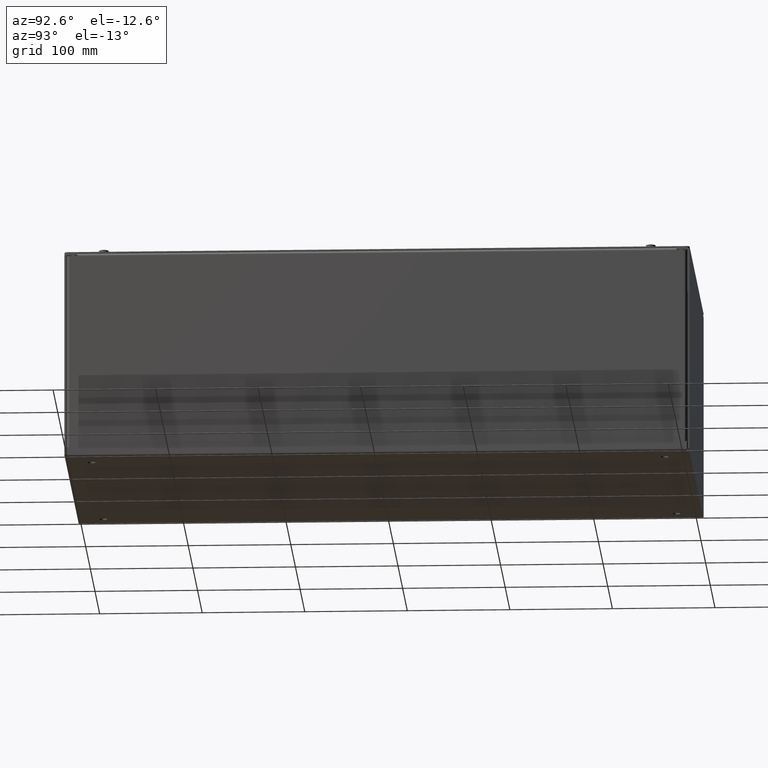
[diagram: clean part render]
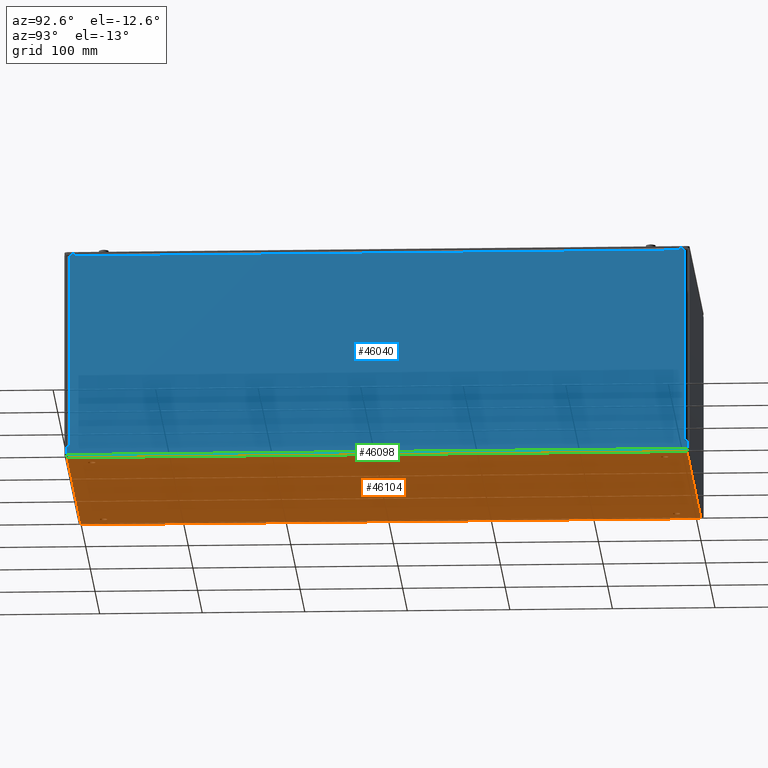
[diagram: same view with three faces highlighted in distinct colors, each labeled with its STEP entity id]
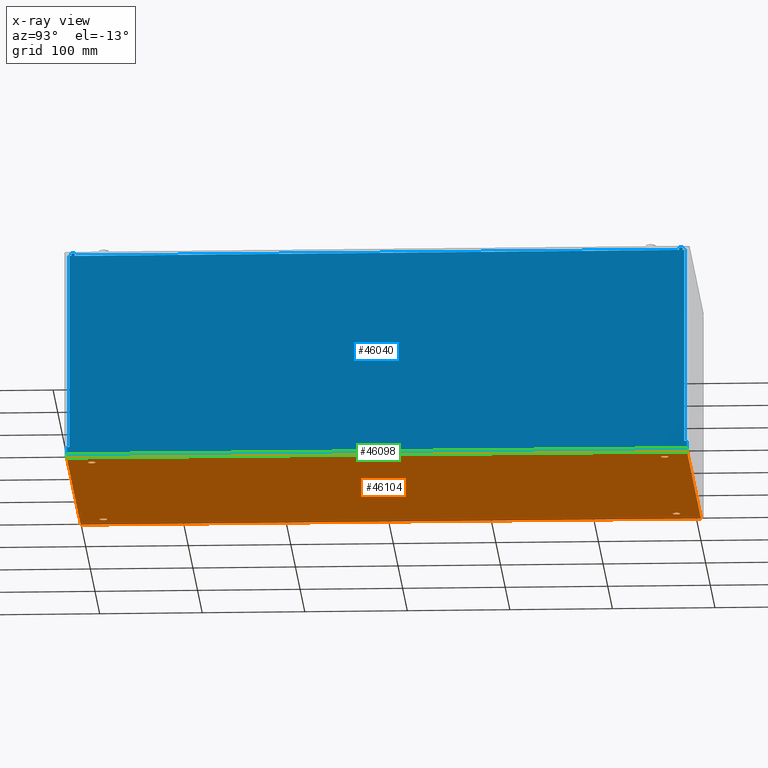
[diagram: x-ray of the same camera — body ghosted, the three highlighted faces saturated]
A machine part, auxiliary view with three faces highlighted in distinct colors.
The next image is the same camera in x-ray (body ghosted, the three faces saturated) — at least one of them is partly hidden behind the body in this view.
Their STEP definitions:

[orange] entity #46104 — the highlighted planar face has unit normal (0, 0, 1).
#4098=FACE_BOUND('',#8744,.T.);
#4099=FACE_BOUND('',#8745,.T.);
#4100=FACE_BOUND('',#8746,.T.);
#4101=FACE_BOUND('',#8747,.T.);
#4500=PLANE('',#48905);
#6221=FACE_OUTER_BOUND('',#8743,.T.);
#8743=EDGE_LOOP('',(#33542,#33543,#33544,#33545));
#8744=EDGE_LOOP('',(#33546));
#8745=EDGE_LOOP('',(#33547));
#8746=EDGE_LOOP('',(#33548));
#8747=EDGE_LOOP('',(#33549));
#11697=LINE('',#61702,#16622);
#11701=LINE('',#61709,#16626);
#11705=LINE('',#61715,#16630);
#11708=LINE('',#61722,#16633);
#16622=VECTOR('',#51867,0.393700787401575);
#16626=VECTOR('',#51877,0.393700787401575);
#16630=VECTOR('',#51885,0.393700787401575);
#16633=VECTOR('',#51896,0.393700787401575);
#21118=CIRCLE('',#48594,0.145);
#21120=CIRCLE('',#48597,0.145);
#21122=CIRCLE('',#48600,0.145);
#21124=CIRCLE('',#48603,0.145);
#21448=VERTEX_POINT('',#60228);
#21450=VERTEX_POINT('',#60234);
#21452=VERTEX_POINT('',#60240);
#21454=VERTEX_POINT('',#60246);
#21742=VERTEX_POINT('',#61117);
#21755=VERTEX_POINT('',#61181);
#21773=VERTEX_POINT('',#61274);
#21775=VERTEX_POINT('',#61280);
#25822=EDGE_CURVE('',#21448,#21448,#21118,.T.);
#25825=EDGE_CURVE('',#21450,#21450,#21120,.T.);
#25828=EDGE_CURVE('',#21452,#21452,#21122,.T.);
#25831=EDGE_CURVE('',#21454,#21454,#21124,.T.);
#26358=EDGE_CURVE('',#21773,#21755,#11697,.T.);
#26362=EDGE_CURVE('',#21742,#21773,#11701,.T.);
#26366=EDGE_CURVE('',#21775,#21742,#11705,.T.);
#26369=EDGE_CURVE('',#21755,#21775,#11708,.T.);
#33542=ORIENTED_EDGE('',*,*,#26358,.T.);
#33543=ORIENTED_EDGE('',*,*,#26369,.T.);
#33544=ORIENTED_EDGE('',*,*,#26366,.T.);
#33545=ORIENTED_EDGE('',*,*,#26362,.T.);
#33546=ORIENTED_EDGE('',*,*,#25822,.T.);
#33547=ORIENTED_EDGE('',*,*,#25825,.T.);
#33548=ORIENTED_EDGE('',*,*,#25828,.T.);
#33549=ORIENTED_EDGE('',*,*,#25831,.T.);
#46104=ADVANCED_FACE('',(#6221,#4098,#4099,#4100,#4101),#4500,.F.);
#48594=AXIS2_PLACEMENT_3D('',#60230,#50836,#50837);
#48597=AXIS2_PLACEMENT_3D('',#60236,#50843,#50844);
#48600=AXIS2_PLACEMENT_3D('',#60242,#50850,#50851);
#48603=AXIS2_PLACEMENT_3D('',#60248,#50857,#50858);
#48905=AXIS2_PLACEMENT_3D('',#61724,#51899,#51900);
#50836=DIRECTION('center_axis',(0.,0.,1.));
#50837=DIRECTION('ref_axis',(1.,2.37028668489426E-16,0.));
#50843=DIRECTION('center_axis',(0.,0.,1.));
#50844=DIRECTION('ref_axis',(1.,2.37028668489426E-16,0.));
#50850=DIRECTION('center_axis',(0.,0.,1.));
#50851=DIRECTION('ref_axis',(1.,2.37028668489426E-16,0.));
#50857=DIRECTION('center_axis',(0.,0.,1.));
#50858=DIRECTION('ref_axis',(1.,2.37028668489426E-16,0.));
#51867=DIRECTION('',(0.,1.,0.));
#51877=DIRECTION('',(-1.,0.,0.));
#51885=DIRECTION('',(0.,-1.,0.));
#51896=DIRECTION('',(1.,0.,0.));
#51899=DIRECTION('center_axis',(0.,0.,1.));
#51900=DIRECTION('ref_axis',(1.,0.,0.));
#60228=CARTESIAN_POINT('',(4.855,-11.,0.));
#60230=CARTESIAN_POINT('Origin',(5.,-11.,0.));
#60234=CARTESIAN_POINT('',(4.855,11.,0.));
#60236=CARTESIAN_POINT('Origin',(5.,11.,0.));
#60240=CARTESIAN_POINT('',(-5.145,11.,0.));
#60242=CARTESIAN_POINT('Origin',(-5.,11.,0.));
#60246=CARTESIAN_POINT('',(-5.145,-11.,0.));
#60248=CARTESIAN_POINT('Origin',(-5.,-11.,0.));
#61117=CARTESIAN_POINT('',(5.901,-11.901,0.));
#61181=CARTESIAN_POINT('',(-5.901,11.901,0.));
#61274=CARTESIAN_POINT('',(-5.901,-11.901,0.));
#61280=CARTESIAN_POINT('',(5.901,11.901,0.));
#61702=CARTESIAN_POINT('',(-5.901,5.9505,0.));
#61709=CARTESIAN_POINT('',(-3.,-11.901,0.));
#61715=CARTESIAN_POINT('',(5.901,-5.9505,0.));
#61722=CARTESIAN_POINT('',(3.,11.901,0.));
#61724=CARTESIAN_POINT('Origin',(0.,0.,0.));

[blue] entity #46040 — the highlighted planar face has unit normal (1, -0, 0).
#4458=PLANE('',#48817);
#6157=FACE_OUTER_BOUND('',#8675,.T.);
#8675=EDGE_LOOP('',(#33214,#33215,#33216,#33217,#33218,#33219,#33220,#33221,
#33222,#33223,#33224,#33225,#33226,#33227,#33228,#33229,#33230,#33231,#33232,
#33233,#33234,#33235));
#11274=LINE('',#60257,#16199);
#11276=LINE('',#60263,#16201);
#11280=LINE('',#60269,#16205);
#11282=LINE('',#60275,#16207);
#11288=LINE('',#60287,#16213);
#11289=LINE('',#60289,#16214);
#11311=LINE('',#60335,#16236);
#11316=LINE('',#60344,#16241);
#11319=LINE('',#60350,#16244);
#11320=LINE('',#60353,#16245);
#11404=LINE('',#60540,#16329);
#11622=LINE('',#61087,#16547);
#11624=LINE('',#61091,#16549);
#11626=LINE('',#61096,#16551);
#11628=LINE('',#61099,#16553);
#11629=LINE('',#61102,#16554);
#11630=LINE('',#61104,#16555);
#11631=LINE('',#61106,#16556);
#11632=LINE('',#61108,#16557);
#11633=LINE('',#61110,#16558);
#11634=LINE('',#61112,#16559);
#11635=LINE('',#61113,#16560);
#16199=VECTOR('',#50864,0.393700787401575);
#16201=VECTOR('',#50868,0.393700787401575);
#16205=VECTOR('',#50874,0.393700787401575);
#16207=VECTOR('',#50878,0.393700787401575);
#16213=VECTOR('',#50886,0.393700787401575);
#16214=VECTOR('',#50889,0.393700787401575);
#16236=VECTOR('',#50925,0.393700787401575);
#16241=VECTOR('',#50932,0.393700787401575);
#16244=VECTOR('',#50937,0.393700787401575);
#16245=VECTOR('',#50940,0.393700787401575);
#16329=VECTOR('',#51100,0.393700787401575);
#16547=VECTOR('',#51630,0.393700787401575);
#16549=VECTOR('',#51634,0.393700787401575);
#16551=VECTOR('',#51638,0.393700787401575);
#16553=VECTOR('',#51642,0.393700787401575);
#16554=VECTOR('',#51645,0.393700787401575);
#16555=VECTOR('',#51646,0.393700787401575);
#16556=VECTOR('',#51647,0.393700787401575);
#16557=VECTOR('',#51648,0.393700787401575);
#16558=VECTOR('',#51649,0.393700787401575);
#16559=VECTOR('',#51650,0.393700787401575);
#16560=VECTOR('',#51651,0.393700787401575);
#21456=VERTEX_POINT('',#60251);
#21458=VERTEX_POINT('',#60255);
#21459=VERTEX_POINT('',#60259);
#21461=VERTEX_POINT('',#60262);
#21463=VERTEX_POINT('',#60271);
#21465=VERTEX_POINT('',#60274);
#21468=VERTEX_POINT('',#60281);
#21470=VERTEX_POINT('',#60285);
#21487=VERTEX_POINT('',#60334);
#21490=VERTEX_POINT('',#60342);
#21492=VERTEX_POINT('',#60348);
#21493=VERTEX_POINT('',#60352);
#21731=VERTEX_POINT('',#61083);
#21732=VERTEX_POINT('',#61089);
#21733=VERTEX_POINT('',#61093);
#21734=VERTEX_POINT('',#61095);
#21735=VERTEX_POINT('',#61101);
#21736=VERTEX_POINT('',#61103);
#21737=VERTEX_POINT('',#61105);
#21738=VERTEX_POINT('',#61107);
#21739=VERTEX_POINT('',#61109);
#21740=VERTEX_POINT('',#61111);
#25835=EDGE_CURVE('',#21456,#21458,#11274,.T.);
#25837=EDGE_CURVE('',#21459,#21461,#11276,.T.);
#25841=EDGE_CURVE('',#21461,#21458,#11280,.T.);
#25843=EDGE_CURVE('',#21463,#21465,#11282,.T.);
#25849=EDGE_CURVE('',#21468,#21470,#11288,.T.);
#25850=EDGE_CURVE('',#21465,#21470,#11289,.T.);
#25872=EDGE_CURVE('',#21487,#21456,#11311,.T.);
#25877=EDGE_CURVE('',#21459,#21490,#11316,.T.);
#25880=EDGE_CURVE('',#21463,#21492,#11319,.T.);
#25881=EDGE_CURVE('',#21493,#21468,#11320,.T.);
#25974=EDGE_CURVE('',#21492,#21487,#11404,.T.);
#26247=EDGE_CURVE('',#21490,#21731,#11622,.T.);
#26249=EDGE_CURVE('',#21731,#21732,#11624,.T.);
#26251=EDGE_CURVE('',#21734,#21733,#11626,.T.);
#26253=EDGE_CURVE('',#21732,#21734,#11628,.T.);
#26254=EDGE_CURVE('',#21733,#21735,#11629,.T.);
#26255=EDGE_CURVE('',#21735,#21736,#11630,.T.);
#26256=EDGE_CURVE('',#21736,#21737,#11631,.T.);
#26257=EDGE_CURVE('',#21737,#21738,#11632,.T.);
#26258=EDGE_CURVE('',#21738,#21739,#11633,.T.);
#26259=EDGE_CURVE('',#21739,#21740,#11634,.T.);
#26260=EDGE_CURVE('',#21740,#21493,#11635,.T.);
#33214=ORIENTED_EDGE('',*,*,#25881,.T.);
#33215=ORIENTED_EDGE('',*,*,#25849,.T.);
#33216=ORIENTED_EDGE('',*,*,#25850,.F.);
#33217=ORIENTED_EDGE('',*,*,#25843,.F.);
#33218=ORIENTED_EDGE('',*,*,#25880,.T.);
#33219=ORIENTED_EDGE('',*,*,#25974,.T.);
#33220=ORIENTED_EDGE('',*,*,#25872,.T.);
#33221=ORIENTED_EDGE('',*,*,#25835,.T.);
#33222=ORIENTED_EDGE('',*,*,#25841,.F.);
#33223=ORIENTED_EDGE('',*,*,#25837,.F.);
#33224=ORIENTED_EDGE('',*,*,#25877,.T.);
#33225=ORIENTED_EDGE('',*,*,#26247,.T.);
#33226=ORIENTED_EDGE('',*,*,#26249,.T.);
#33227=ORIENTED_EDGE('',*,*,#26253,.T.);
#33228=ORIENTED_EDGE('',*,*,#26251,.T.);
#33229=ORIENTED_EDGE('',*,*,#26254,.T.);
#33230=ORIENTED_EDGE('',*,*,#26255,.T.);
#33231=ORIENTED_EDGE('',*,*,#26256,.T.);
#33232=ORIENTED_EDGE('',*,*,#26257,.T.);
#33233=ORIENTED_EDGE('',*,*,#26258,.T.);
#33234=ORIENTED_EDGE('',*,*,#26259,.T.);
#33235=ORIENTED_EDGE('',*,*,#26260,.T.);
#46040=ADVANCED_FACE('',(#6157),#4458,.T.);
#48817=AXIS2_PLACEMENT_3D('',#61100,#51643,#51644);
#50864=DIRECTION('',(0.,0.,1.));
#50868=DIRECTION('',(0.,0.,1.));
#50874=DIRECTION('',(0.,1.,-8.5192666766983E-34));
#50878=DIRECTION('',(0.,0.,1.));
#50886=DIRECTION('',(0.,0.,1.));
#50889=DIRECTION('',(0.,1.,-8.5192666766983E-34));
#50925=DIRECTION('',(-1.09634755134407E-17,-1.,0.));
#50932=DIRECTION('',(-1.09634755134407E-17,-1.,0.));
#50937=DIRECTION('',(-1.09634755134407E-17,-1.,0.));
#50940=DIRECTION('',(-1.09634755134407E-17,-1.,0.));
#51100=DIRECTION('',(-1.09634755134407E-17,-1.,0.));
#51630=DIRECTION('',(9.00286622389657E-17,0.,-1.));
#51634=DIRECTION('',(1.09634755134407E-17,1.,0.));
#51638=DIRECTION('',(-1.09634755134407E-17,-1.,0.));
#51642=DIRECTION('',(9.00286622389657E-17,0.,-1.));
#51643=DIRECTION('center_axis',(1.,-1.09634755134407E-17,9.00286622389657E-17));
#51644=DIRECTION('ref_axis',(9.00286622389657E-17,0.,-1.));
#51645=DIRECTION('',(6.12323399573677E-17,0.,-1.));
#51646=DIRECTION('',(1.09634755134407E-17,1.,0.));
#51647=DIRECTION('',(-6.12323399573677E-17,0.,1.));
#51648=DIRECTION('',(-1.09634755134407E-17,-1.,0.));
#51649=DIRECTION('',(-9.00286622389657E-17,0.,1.));
#51650=DIRECTION('',(1.09634755134407E-17,1.,0.));
#51651=DIRECTION('',(-9.00286622389657E-17,0.,1.));
#60251=CARTESIAN_POINT('',(6.,-11.605,7.901));
#60255=CARTESIAN_POINT('',(6.,-11.605,8.));
#60257=CARTESIAN_POINT('',(6.,-11.605,7.901));
#60259=CARTESIAN_POINT('',(6.,-11.735,7.901));
#60262=CARTESIAN_POINT('',(6.,-11.735,8.));
#60263=CARTESIAN_POINT('',(6.,-11.735,7.901));
#60269=CARTESIAN_POINT('',(6.,-11.735,8.));
#60271=CARTESIAN_POINT('',(6.,11.605,7.901));
#60274=CARTESIAN_POINT('',(6.,11.605,8.));
#60275=CARTESIAN_POINT('',(6.,11.605,7.901));
#60281=CARTESIAN_POINT('',(6.,11.735,7.901));
#60285=CARTESIAN_POINT('',(6.,11.735,8.));
#60287=CARTESIAN_POINT('',(6.,11.735,7.901));
#60289=CARTESIAN_POINT('',(6.,11.605,8.));
#60334=CARTESIAN_POINT('',(6.,-11.499,7.901));
#60335=CARTESIAN_POINT('',(6.,-5.7495,7.901));
#60342=CARTESIAN_POINT('',(6.,-11.802,7.901));
#60344=CARTESIAN_POINT('',(6.,-5.7495,7.901));
#60348=CARTESIAN_POINT('',(6.,11.499,7.901));
#60350=CARTESIAN_POINT('',(6.,-5.7495,7.901));
#60352=CARTESIAN_POINT('',(6.,11.802,7.901));
#60353=CARTESIAN_POINT('',(6.,-5.7495,7.901));
#60540=CARTESIAN_POINT('',(6.,-5.7495,7.901));
#61083=CARTESIAN_POINT('',(6.,-11.802,0.39251336973));
#61087=CARTESIAN_POINT('',(6.,-11.802,2.196256684865));
#61089=CARTESIAN_POINT('',(6.,-11.8018,0.39251336973));
#61091=CARTESIAN_POINT('',(6.,-5.9009,0.39251336973));
#61093=CARTESIAN_POINT('',(6.,-11.901,0.39231336973));
#61095=CARTESIAN_POINT('',(6.,-11.8018,0.39231336973));
#61096=CARTESIAN_POINT('',(6.,-5.9505,0.39231336973));
#61099=CARTESIAN_POINT('',(6.,-11.8018,2.196156684865));
#61100=CARTESIAN_POINT('Origin',(6.,0.,4.));
#61101=CARTESIAN_POINT('',(6.,-11.901,0.099));
#61102=CARTESIAN_POINT('',(6.,-11.901,8.));
#61103=CARTESIAN_POINT('',(6.,11.901,0.099));
#61104=CARTESIAN_POINT('',(6.,5.9505,0.0989999999999999));
#61105=CARTESIAN_POINT('',(6.,11.901,0.39231336973));
#61106=CARTESIAN_POINT('',(6.,11.901,0.));
#61107=CARTESIAN_POINT('',(6.,11.8018,0.39231336973));
#61108=CARTESIAN_POINT('',(6.,5.9009,0.39231336973));
#61109=CARTESIAN_POINT('',(6.,11.8018,0.39251336973));
#61110=CARTESIAN_POINT('',(6.,11.8018,2.196256684865));
#61111=CARTESIAN_POINT('',(6.,11.802,0.39251336973));
#61112=CARTESIAN_POINT('',(6.,5.9505,0.39251336973));
#61113=CARTESIAN_POINT('',(6.,11.802,5.9505));

[green] entity #46098 — the highlighted cylindrical surface (edge-blend (fillet) strip) has radius 2.5146 mm, axis along (0, -1, 0).
#6215=FACE_OUTER_BOUND('',#8737,.T.);
#8737=EDGE_LOOP('',(#33518,#33519,#33520,#33521));
#11630=LINE('',#61104,#16555);
#11705=LINE('',#61715,#16630);
#16555=VECTOR('',#51646,0.393700787401575);
#16630=VECTOR('',#51885,0.393700787401575);
#21190=CIRCLE('',#48820,0.099);
#21215=CIRCLE('',#48892,0.099);
#21735=VERTEX_POINT('',#61101);
#21736=VERTEX_POINT('',#61103);
#21742=VERTEX_POINT('',#61117);
#21775=VERTEX_POINT('',#61280);
#26255=EDGE_CURVE('',#21735,#21736,#11630,.T.);
#26263=EDGE_CURVE('',#21742,#21735,#21190,.T.);
#26345=EDGE_CURVE('',#21775,#21736,#21215,.T.);
#26366=EDGE_CURVE('',#21775,#21742,#11705,.T.);
#33518=ORIENTED_EDGE('',*,*,#26255,.F.);
#33519=ORIENTED_EDGE('',*,*,#26263,.F.);
#33520=ORIENTED_EDGE('',*,*,#26366,.F.);
#33521=ORIENTED_EDGE('',*,*,#26345,.T.);
#45780=CYLINDRICAL_SURFACE('',#48899,0.099);
#46098=ADVANCED_FACE('',(#6215),#45780,.T.);
#48820=AXIS2_PLACEMENT_3D('',#61119,#51657,#51658);
#48892=AXIS2_PLACEMENT_3D('',#61281,#51858,#51859);
#48899=AXIS2_PLACEMENT_3D('',#61714,#51883,#51884);
#51646=DIRECTION('',(1.09634755134407E-17,1.,0.));
#51657=DIRECTION('center_axis',(0.,-1.,0.));
#51658=DIRECTION('ref_axis',(-4.51195539598743E-14,-4.51195539598743E-14,
-1.));
#51858=DIRECTION('center_axis',(0.,-1.,0.));
#51859=DIRECTION('ref_axis',(-4.51195539598743E-14,-4.51195539598743E-14,
-1.));
#51883=DIRECTION('center_axis',(0.,-1.,0.));
#51884=DIRECTION('ref_axis',(-4.51195539598743E-14,-4.51195539598743E-14,
-1.));
#51885=DIRECTION('',(0.,-1.,0.));
#61101=CARTESIAN_POINT('',(6.,-11.901,0.099));
#61103=CARTESIAN_POINT('',(6.,11.901,0.099));
#61104=CARTESIAN_POINT('',(6.,5.9505,0.0989999999999999));
#61117=CARTESIAN_POINT('',(5.901,-11.901,0.));
#61119=CARTESIAN_POINT('Origin',(5.901,-11.901,0.099));
#61280=CARTESIAN_POINT('',(5.901,11.901,0.));
#61281=CARTESIAN_POINT('Origin',(5.901,11.901,0.099));
#61714=CARTESIAN_POINT('Origin',(5.901,2.79741234551221E-15,0.099));
#61715=CARTESIAN_POINT('',(5.901,-5.9505,0.));